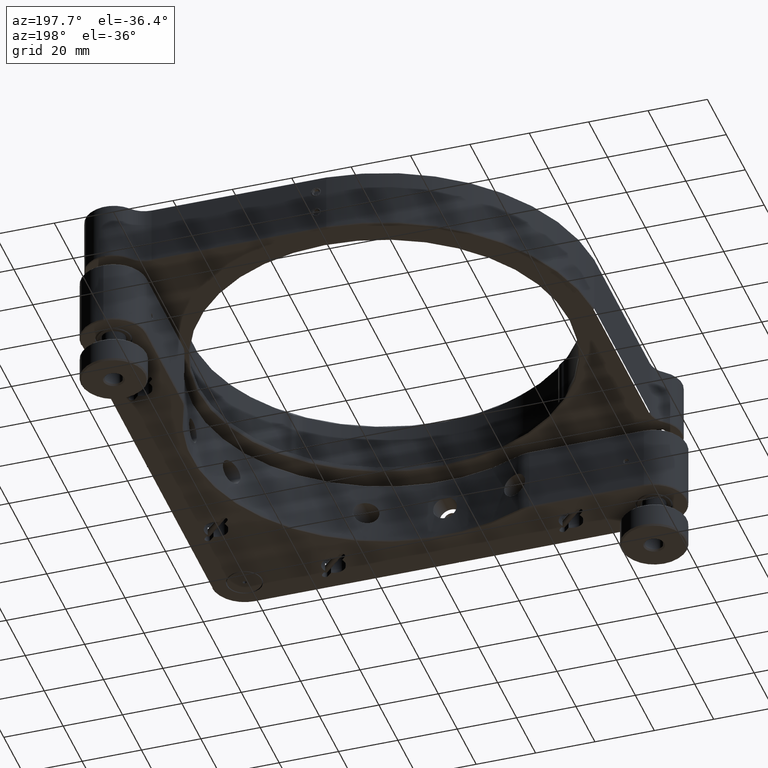
[diagram: clean part render]
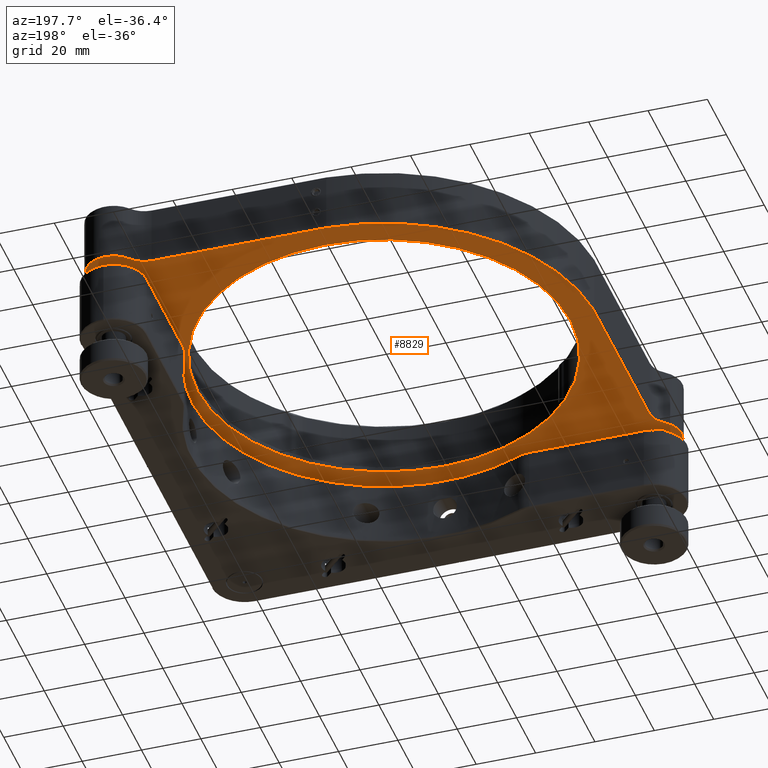
[diagram: same view with one face highlighted and labeled with its STEP entity id]
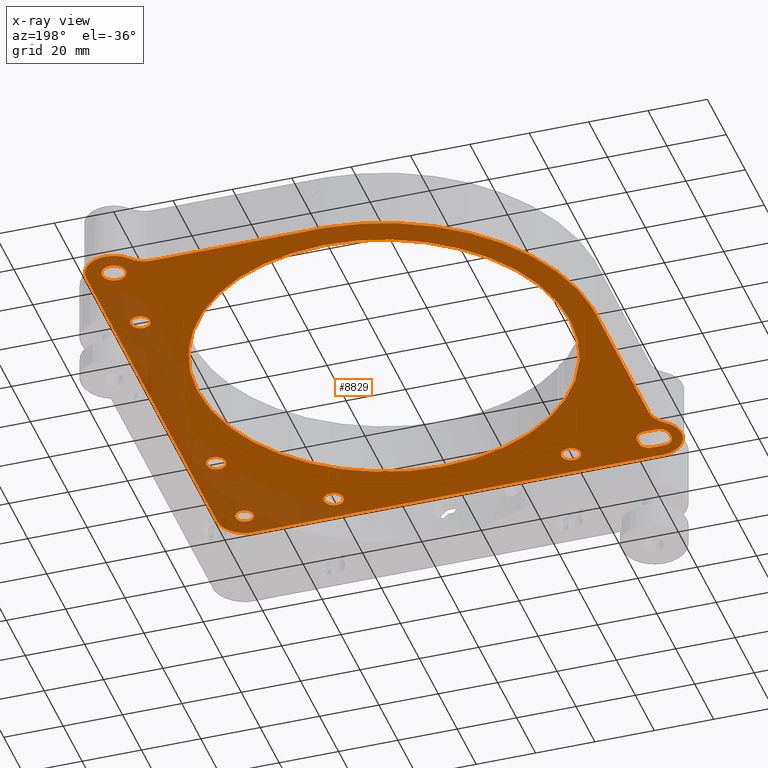
[diagram: x-ray of the same camera — body ghosted, the highlighted face saturated]
A machine part, auxiliary view. The second image highlights one B-rep face of the part: STEP entity #8829.
The next image is the same camera in x-ray: the body ghosted, the highlighted face saturated — about 24% of this face is hidden behind the body in this view.
In plain terms, the highlighted planar face has unit normal (0, 0, 1).
Its self-contained STEP definition (entity closure, byte-faithful):
#4 = VERTEX_POINT ( 'NONE', #3580 ) ;
#46 = EDGE_CURVE ( 'NONE', #11708, #6858, #659, .T. ) ;
#86 = DIRECTION ( 'NONE',  ( 1.460576560598794809E-21, -9.396343987072984124E-36, 1.000000000000000000 ) ) ;
#199 = FACE_BOUND ( 'NONE', #15394, .T. ) ;
#255 = ORIENTED_EDGE ( 'NONE', *, *, #2618, .T. ) ;
#275 = LINE ( 'NONE', #12277, #16104 ) ;
#289 = DIRECTION ( 'NONE',  ( -1.460576560598794809E-21, 9.396343987072984124E-36, -1.000000000000000000 ) ) ;
#320 = ORIENTED_EDGE ( 'NONE', *, *, #16398, .T. ) ;
#332 = CARTESIAN_POINT ( 'NONE',  ( 65.75000000000123634, 41.00000000000063949, 15.39949493661167246 ) ) ;
#380 = CIRCLE ( 'NONE', #8109, 9.250000000000223821 ) ;
#400 = AXIS2_PLACEMENT_3D ( 'NONE', #3988, #9445, #14900 ) ;
#447 = CARTESIAN_POINT ( 'NONE',  ( -67.00000000000133582, -73.45000000000142393, 15.39949493661167246 ) ) ;
#465 = FACE_BOUND ( 'NONE', #15289, .T. ) ;
#594 = EDGE_CURVE ( 'NONE', #2729, #2910, #11544, .T. ) ;
#659 = CIRCLE ( 'NONE', #14092, 3.000000000000071942 ) ;
#701 = CIRCLE ( 'NONE', #400, 3.250000000000072387 ) ;
#703 = DIRECTION ( 'NONE',  ( 0.000000000000000000, -1.000000000000000000, 0.000000000000000000 ) ) ;
#748 = EDGE_CURVE ( 'NONE', #2089, #7578, #5885, .T. ) ;
#813 = DIRECTION ( 'NONE',  ( -1.460576560598794809E-21, 9.396343987072984124E-36, -1.000000000000000000 ) ) ;
#889 = CARTESIAN_POINT ( 'NONE',  ( 69.00000000000129319, 69.00000000000133582, 15.39949493661167246 ) ) ;
#1053 = EDGE_CURVE ( 'NONE', #13142, #4, #380, .T. ) ;
#1078 = VERTEX_POINT ( 'NONE', #11657 ) ;
#1106 = DIRECTION ( 'NONE',  ( 1.460576560598794809E-21, -9.396343987072984124E-36, 1.000000000000000000 ) ) ;
#1171 = CARTESIAN_POINT ( 'NONE',  ( -3.642919299551294898E-14, -4.163336342344276442E-14, 15.39949493661167246 ) ) ;
#1185 = ORIENTED_EDGE ( 'NONE', *, *, #15339, .F. ) ;
#1230 = VERTEX_POINT ( 'NONE', #5043 ) ;
#1261 = CIRCLE ( 'NONE', #9260, 9.250000000000230926 ) ;
#1279 = CARTESIAN_POINT ( 'NONE',  ( 78.25000000000135003, -5.558054017028680189E-15, 15.39949493661167246 ) ) ;
#1300 = EDGE_LOOP ( 'NONE', ( #17297, #9742, #13541, #10475, #4988, #3475, #16133, #3579, #5295, #320, #14251 ) ) ;
#1322 = ORIENTED_EDGE ( 'NONE', *, *, #748, .F. ) ;
#1345 = EDGE_CURVE ( 'NONE', #8491, #5480, #275, .T. ) ;
#1361 = ORIENTED_EDGE ( 'NONE', *, *, #16684, .F. ) ;
#1517 = LINE ( 'NONE', #16547, #2370 ) ;
#1535 = AXIS2_PLACEMENT_3D ( 'NONE', #4309, #289, #9772 ) ;
#1537 = EDGE_LOOP ( 'NONE', ( #255, #3551 ) ) ;
#1621 = FACE_BOUND ( 'NONE', #14303, .T. ) ;
#1634 = VERTEX_POINT ( 'NONE', #12234 ) ;
#1664 = EDGE_CURVE ( 'NONE', #11262, #1748, #17682, .T. ) ;
#1678 = DIRECTION ( 'NONE',  ( -1.460576560598794809E-21, 9.396343987072984124E-36, -1.000000000000000000 ) ) ;
#1695 = DIRECTION ( 'NONE',  ( -1.460576560598794809E-21, 9.396343987072984124E-36, -1.000000000000000000 ) ) ;
#1702 = CARTESIAN_POINT ( 'NONE',  ( 69.00000000000127898, 65.00000000000125056, 15.39949493661167246 ) ) ;
#1711 = CARTESIAN_POINT ( 'NONE',  ( 69.00000000000129319, 78.25000000000136424, 15.39949493661167246 ) ) ;
#1748 = VERTEX_POINT ( 'NONE', #14097 ) ;
#1752 = CARTESIAN_POINT ( 'NONE',  ( 65.75000000000126477, -39.00000000000071054, 15.39949493661167246 ) ) ;
#1789 = DIRECTION ( 'NONE',  ( -4.191091917959963574E-15, 1.000000000000000000, 0.000000000000000000 ) ) ;
#1834 = CIRCLE ( 'NONE', #10114, 4.000000000000087041 ) ;
#1892 = DIRECTION ( 'NONE',  ( 1.460576560598794809E-21, 8.071795126406654290E-36, 1.000000000000000000 ) ) ;
#1927 = EDGE_CURVE ( 'NONE', #9002, #1230, #9220, .T. ) ;
#2008 = EDGE_CURVE ( 'NONE', #4, #9585, #6586, .T. ) ;
#2089 = VERTEX_POINT ( 'NONE', #14803 ) ;
#2154 = DIRECTION ( 'NONE',  ( 0.000000000000000000, -1.000000000000000000, 0.000000000000000000 ) ) ;
#2197 = VERTEX_POINT ( 'NONE', #14072 ) ;
#2238 = ORIENTED_EDGE ( 'NONE', *, *, #4624, .F. ) ;
#2270 = AXIS2_PLACEMENT_3D ( 'NONE', #4578, #1892, #4674 ) ;
#2321 = DIRECTION ( 'NONE',  ( -1.460576560598794809E-21, 9.396343987072984124E-36, -1.000000000000000000 ) ) ;
#2370 = VECTOR ( 'NONE', #11023, 1000.000000000000000 ) ;
#2416 = DIRECTION ( 'NONE',  ( 0.000000000000000000, -1.000000000000000000, 0.000000000000000000 ) ) ;
#2513 = DIRECTION ( 'NONE',  ( -1.460576560598794809E-21, 9.396343987072984124E-36, -1.000000000000000000 ) ) ;
#2550 = CIRCLE ( 'NONE', #7409, 3.250000000000072387 ) ;
#2562 = EDGE_CURVE ( 'NONE', #1748, #2089, #9957, .T. ) ;
#2618 = EDGE_CURVE ( 'NONE', #3280, #6709, #6264, .T. ) ;
#2622 = CARTESIAN_POINT ( 'NONE',  ( -79.91488024046338978, -55.32098726748413497, 15.39949493661167246 ) ) ;
#2630 = DIRECTION ( 'NONE',  ( 0.000000000000000000, 1.000000000000000000, 0.000000000000000000 ) ) ;
#2650 = AXIS2_PLACEMENT_3D ( 'NONE', #17664, #10714, #2630 ) ;
#2729 = VERTEX_POINT ( 'NONE', #1702 ) ;
#2731 = ORIENTED_EDGE ( 'NONE', *, *, #46, .F. ) ;
#2910 = VERTEX_POINT ( 'NONE', #7621 ) ;
#2924 = VECTOR ( 'NONE', #7850, 1000.000000000000000 ) ;
#2959 = AXIS2_PLACEMENT_3D ( 'NONE', #1171, #6641, #16202 ) ;
#2988 = ORIENTED_EDGE ( 'NONE', *, *, #12816, .F. ) ;
#3087 = EDGE_CURVE ( 'NONE', #7134, #3620, #2550, .T. ) ;
#3245 = CIRCLE ( 'NONE', #9249, 8.250000000000145661 ) ;
#3280 = VERTEX_POINT ( 'NONE', #16367 ) ;
#3299 = ORIENTED_EDGE ( 'NONE', *, *, #4966, .F. ) ;
#3475 = ORIENTED_EDGE ( 'NONE', *, *, #4212, .T. ) ;
#3548 = CIRCLE ( 'NONE', #14683, 3.500000000000072387 ) ;
#3551 = ORIENTED_EDGE ( 'NONE', *, *, #15348, .T. ) ;
#3560 = VERTEX_POINT ( 'NONE', #9374 ) ;
#3579 = ORIENTED_EDGE ( 'NONE', *, *, #2008, .T. ) ;
#3580 = CARTESIAN_POINT ( 'NONE',  ( 69.00000000000139266, -78.25000000000139266, 15.39949493661167246 ) ) ;
#3607 = CARTESIAN_POINT ( 'NONE',  ( -71.00000000000132161, -73.45000000000142393, 15.39949493661167246 ) ) ;
#3620 = VERTEX_POINT ( 'NONE', #3657 ) ;
#3657 = CARTESIAN_POINT ( 'NONE',  ( 72.25000000000140687, -39.00000000000071054, 15.39949493661167246 ) ) ;
#3685 = CARTESIAN_POINT ( 'NONE',  ( -8.421012831337362268E-14, 62.80000000000129745, 15.39949493661167246 ) ) ;
#3727 = ORIENTED_EDGE ( 'NONE', *, *, #13829, .T. ) ;
#3793 = CARTESIAN_POINT ( 'NONE',  ( -41.00000000000065370, -69.00000000000143530, 15.39949493661167246 ) ) ;
#3835 = ORIENTED_EDGE ( 'NONE', *, *, #11233, .F. ) ;
#3837 = AXIS2_PLACEMENT_3D ( 'NONE', #8650, #12948, #10076 ) ;
#3955 = DIRECTION ( 'NONE',  ( 0.000000000000000000, 1.000000000000000000, 0.000000000000000000 ) ) ;
#3988 = CARTESIAN_POINT ( 'NONE',  ( 69.00000000000133582, -39.00000000000071054, 15.39949493661167246 ) ) ;
#4098 = CARTESIAN_POINT ( 'NONE',  ( 69.00000000000136424, -66.00000000000129319, 15.39949493661167246 ) ) ;
#4137 = ORIENTED_EDGE ( 'NONE', *, *, #13454, .T. ) ;
#4212 = EDGE_CURVE ( 'NONE', #3560, #13142, #10947, .T. ) ;
#4280 = VERTEX_POINT ( 'NONE', #16829 ) ;
#4309 = CARTESIAN_POINT ( 'NONE',  ( 39.00000000000069633, -69.00000000000137845, 15.39949493661167246 ) ) ;
#4345 = CARTESIAN_POINT ( 'NONE',  ( 55.32098726748396444, 71.66488024046341820, 15.39949493661167246 ) ) ;
#4368 = DIRECTION ( 'NONE',  ( 0.000000000000000000, 1.000000000000000000, 0.000000000000000000 ) ) ;
#4490 = FACE_BOUND ( 'NONE', #16582, .T. ) ;
#4524 = DIRECTION ( 'NONE',  ( 6.383782391594628414E-16, -1.000000000000000000, 7.139394833494011697E-36 ) ) ;
#4574 = VECTOR ( 'NONE', #8996, 1000.000000000000000 ) ;
#4578 = CARTESIAN_POINT ( 'NONE',  ( -2.775557561562890089E-14, -5.551115123125781440E-14, 15.39949493661167246 ) ) ;
#4587 = AXIS2_PLACEMENT_3D ( 'NONE', #6104, #11557, #17007 ) ;
#4596 = CARTESIAN_POINT ( 'NONE',  ( -71.66488024046346084, 3.493914727097803485, 15.39949493661167246 ) ) ;
#4624 = EDGE_CURVE ( 'NONE', #1634, #6129, #10889, .T. ) ;
#4674 = DIRECTION ( 'NONE',  ( -6.383782391594628414E-16, 1.000000000000000000, -7.139394833494011697E-36 ) ) ;
#4752 = DIRECTION ( 'NONE',  ( -1.460576560598794809E-21, 9.396343987072984124E-36, -1.000000000000000000 ) ) ;
#4966 = EDGE_CURVE ( 'NONE', #2197, #11262, #9723, .T. ) ;
#4988 = ORIENTED_EDGE ( 'NONE', *, *, #6713, .T. ) ;
#5043 = CARTESIAN_POINT ( 'NONE',  ( -74.50000000000133582, -69.95000000000140972, 15.39949493661167246 ) ) ;
#5290 = VERTEX_POINT ( 'NONE', #10562 ) ;
#5295 = ORIENTED_EDGE ( 'NONE', *, *, #12725, .T. ) ;
#5379 = CARTESIAN_POINT ( 'NONE',  ( -67.00000000000133582, -69.95000000000140972, 15.39949493661167246 ) ) ;
#5480 = VERTEX_POINT ( 'NONE', #4345 ) ;
#5523 = DIRECTION ( 'NONE',  ( 1.000000000000000000, 6.383782391594628414E-16, -1.460576560598815498E-21 ) ) ;
#5575 = VERTEX_POINT ( 'NONE', #15804 ) ;
#5606 = AXIS2_PLACEMENT_3D ( 'NONE', #14043, #1695, #1789 ) ;
#5653 = DIRECTION ( 'NONE',  ( 1.000000000000000000, 6.383782391594628414E-16, -1.460576560598815498E-21 ) ) ;
#5731 = DIRECTION ( 'NONE',  ( -8.410780489584370766E-16, 1.000000000000000000, 0.000000000000000000 ) ) ;
#5810 = ORIENTED_EDGE ( 'NONE', *, *, #594, .F. ) ;
#5885 = LINE ( 'NONE', #16782, #13518 ) ;
#5963 = AXIS2_PLACEMENT_3D ( 'NONE', #6484, #11932, #3955 ) ;
#6104 = CARTESIAN_POINT ( 'NONE',  ( 39.00000000000069633, -69.00000000000137845, 15.39949493661167246 ) ) ;
#6129 = VERTEX_POINT ( 'NONE', #15150 ) ;
#6264 = CIRCLE ( 'NONE', #14247, 62.80000000000134008 ) ;
#6314 = EDGE_CURVE ( 'NONE', #14344, #16018, #9746, .T. ) ;
#6455 = CARTESIAN_POINT ( 'NONE',  ( -41.00000000000065370, -69.00000000000143530, 15.39949493661167246 ) ) ;
#6484 = CARTESIAN_POINT ( 'NONE',  ( -67.00000000000133582, -68.05000000000141824, 15.39949493661167246 ) ) ;
#6545 = CARTESIAN_POINT ( 'NONE',  ( 69.00000000000133582, -39.00000000000071054, 15.39949493661167246 ) ) ;
#6550 = DIRECTION ( 'NONE',  ( 0.000000000000000000, -1.000000000000000000, 0.000000000000000000 ) ) ;
#6586 = LINE ( 'NONE', #14985, #2924 ) ;
#6641 = DIRECTION ( 'NONE',  ( 1.460576560598794809E-21, -9.396343987072984124E-36, 1.000000000000000000 ) ) ;
#6654 = DIRECTION ( 'NONE',  ( 1.460576560598794809E-21, -9.396343987072984124E-36, 1.000000000000000000 ) ) ;
#6709 = VERTEX_POINT ( 'NONE', #3685 ) ;
#6713 = EDGE_CURVE ( 'NONE', #15030, #3560, #11483, .T. ) ;
#6739 = EDGE_CURVE ( 'NONE', #6858, #11708, #7482, .T. ) ;
#6772 = ORIENTED_EDGE ( 'NONE', *, *, #1664, .F. ) ;
#6802 = CARTESIAN_POINT ( 'NONE',  ( 69.00000000000130740, 41.00000000000063949, 15.39949493661167246 ) ) ;
#6858 = VERTEX_POINT ( 'NONE', #4098 ) ;
#6910 = AXIS2_PLACEMENT_3D ( 'NONE', #3793, #4752, #2154 ) ;
#6924 = DIRECTION ( 'NONE',  ( 0.000000000000000000, 1.000000000000000000, 0.000000000000000000 ) ) ;
#7099 = PLANE ( 'NONE',  #2270 ) ;
#7134 = VERTEX_POINT ( 'NONE', #1752 ) ;
#7188 = FACE_OUTER_BOUND ( 'NONE', #1300, .T. ) ;
#7264 = AXIS2_PLACEMENT_3D ( 'NONE', #2622, #1106, #6924 ) ;
#7293 = CARTESIAN_POINT ( 'NONE',  ( 78.25000000000139266, -69.00000000000135003, 15.39949493661167246 ) ) ;
#7409 = AXIS2_PLACEMENT_3D ( 'NONE', #6545, #9311, #16197 ) ;
#7449 = FACE_BOUND ( 'NONE', #1537, .T. ) ;
#7457 = CARTESIAN_POINT ( 'NONE',  ( 69.00000000000136424, -72.00000000000143530, 15.39949493661167246 ) ) ;
#7482 = CIRCLE ( 'NONE', #10057, 3.000000000000071942 ) ;
#7578 = VERTEX_POINT ( 'NONE', #16066 ) ;
#7621 = CARTESIAN_POINT ( 'NONE',  ( 69.00000000000127898, 73.00000000000142109, 15.39949493661167246 ) ) ;
#7685 = CARTESIAN_POINT ( 'NONE',  ( 69.00000000000136424, -69.00000000000136424, 15.39949493661167246 ) ) ;
#7747 = AXIS2_PLACEMENT_3D ( 'NONE', #12710, #1678, #4368 ) ;
#7774 = VERTEX_POINT ( 'NONE', #4596 ) ;
#7850 = DIRECTION ( 'NONE',  ( -1.000000000000000000, -6.383782391594628414E-16, 1.460576560598815498E-21 ) ) ;
#8104 = CIRCLE ( 'NONE', #10094, 3.250000000000072387 ) ;
#8109 = AXIS2_PLACEMENT_3D ( 'NONE', #12915, #10418, #11573 ) ;
#8238 = CARTESIAN_POINT ( 'NONE',  ( 55.32098726748396444, 79.91488024046338978, 15.39949493661167246 ) ) ;
#8281 = EDGE_LOOP ( 'NONE', ( #13079, #14964, #3835, #1185, #1322, #17384, #6772, #3299 ) ) ;
#8284 = CARTESIAN_POINT ( 'NONE',  ( -41.00000000000065370, -65.75000000000136424, 15.39949493661167246 ) ) ;
#8491 = VERTEX_POINT ( 'NONE', #10435 ) ;
#8650 = CARTESIAN_POINT ( 'NONE',  ( 69.00000000000127898, 69.00000000000133582, 15.39949493661167246 ) ) ;
#8706 = FACE_BOUND ( 'NONE', #8281, .T. ) ;
#8829 = ADVANCED_FACE ( 'NONE', ( #7188, #7449, #1621, #465, #8706, #199, #4490, #9949, #14157 ), #7099, .F. ) ;
#8996 = DIRECTION ( 'NONE',  ( 6.383782391594628414E-16, -1.000000000000000000, 7.139394833494011697E-36 ) ) ;
#9002 = VERTEX_POINT ( 'NONE', #3607 ) ;
#9047 = DIRECTION ( 'NONE',  ( 0.000000000000000000, 1.000000000000000000, 0.000000000000000000 ) ) ;
#9166 = CARTESIAN_POINT ( 'NONE',  ( -71.00000000000132161, -64.55000000000141824, 15.39949493661167246 ) ) ;
#9205 = CIRCLE ( 'NONE', #13489, 9.250000000000216716 ) ;
#9220 = CIRCLE ( 'NONE', #2650, 3.500000000000072387 ) ;
#9249 = AXIS2_PLACEMENT_3D ( 'NONE', #8238, #86, #5731 ) ;
#9260 = AXIS2_PLACEMENT_3D ( 'NONE', #14207, #11260, #11344 ) ;
#9301 = DIRECTION ( 'NONE',  ( 1.000000000000000000, 0.000000000000000000, 0.000000000000000000 ) ) ;
#9311 = DIRECTION ( 'NONE',  ( 1.460576560598794809E-21, -9.396343987072984124E-36, 1.000000000000000000 ) ) ;
#9351 = EDGE_CURVE ( 'NONE', #1078, #7774, #12071, .T. ) ;
#9374 = CARTESIAN_POINT ( 'NONE',  ( 78.25000000000130740, 69.00000000000136424, 15.39949493661167246 ) ) ;
#9445 = DIRECTION ( 'NONE',  ( 1.460576560598794809E-21, -9.396343987072984124E-36, 1.000000000000000000 ) ) ;
#9524 = AXIS2_PLACEMENT_3D ( 'NONE', #6455, #14670, #2416 ) ;
#9585 = VERTEX_POINT ( 'NONE', #17215 ) ;
#9654 = EDGE_LOOP ( 'NONE', ( #11391, #14509 ) ) ;
#9723 = CIRCLE ( 'NONE', #7747, 3.500000000000072387 ) ;
#9742 = ORIENTED_EDGE ( 'NONE', *, *, #1345, .T. ) ;
#9746 = CIRCLE ( 'NONE', #6910, 3.250000000000072387 ) ;
#9772 = DIRECTION ( 'NONE',  ( 0.000000000000000000, -1.000000000000000000, 0.000000000000000000 ) ) ;
#9825 = CIRCLE ( 'NONE', #16958, 3.250000000000072387 ) ;
#9949 = FACE_BOUND ( 'NONE', #9654, .T. ) ;
#9957 = CIRCLE ( 'NONE', #5963, 3.500000000000072387 ) ;
#10004 = ORIENTED_EDGE ( 'NONE', *, *, #3087, .T. ) ;
#10007 = DIRECTION ( 'NONE',  ( -1.460576560598794809E-21, 9.396343987072984124E-36, -1.000000000000000000 ) ) ;
#10057 = AXIS2_PLACEMENT_3D ( 'NONE', #11918, #16023, #6550 ) ;
#10076 = DIRECTION ( 'NONE',  ( 0.000000000000000000, -1.000000000000000000, 0.000000000000000000 ) ) ;
#10094 = AXIS2_PLACEMENT_3D ( 'NONE', #6802, #12249, #9301 ) ;
#10114 = AXIS2_PLACEMENT_3D ( 'NONE', #11792, #15726, #703 ) ;
#10418 = DIRECTION ( 'NONE',  ( -1.460576560598794809E-21, 9.396343987072984124E-36, -1.000000000000000000 ) ) ;
#10435 = CARTESIAN_POINT ( 'NONE',  ( -3.493914727097981121, 71.66488024046337557, 15.39949493661167246 ) ) ;
#10475 = ORIENTED_EDGE ( 'NONE', *, *, #17124, .T. ) ;
#10562 = CARTESIAN_POINT ( 'NONE',  ( 61.76966469852783348, 74.76929384138844625, 15.39949493661167246 ) ) ;
#10586 = EDGE_CURVE ( 'NONE', #7774, #8491, #14750, .T. ) ;
#10714 = DIRECTION ( 'NONE',  ( -1.460576560598794809E-21, 9.396343987072984124E-36, -1.000000000000000000 ) ) ;
#10825 = DIRECTION ( 'NONE',  ( 1.000000000000000000, 0.000000000000000000, 0.000000000000000000 ) ) ;
#10889 = CIRCLE ( 'NONE', #4587, 3.250000000000072387 ) ;
#10937 = VECTOR ( 'NONE', #11404, 1000.000000000000000 ) ;
#10947 = LINE ( 'NONE', #1279, #4574 ) ;
#11023 = DIRECTION ( 'NONE',  ( -6.383782391594628414E-16, 1.000000000000000000, -7.139394833494011697E-36 ) ) ;
#11233 = EDGE_CURVE ( 'NONE', #15480, #9002, #14091, .T. ) ;
#11253 = CIRCLE ( 'NONE', #1535, 3.250000000000072387 ) ;
#11260 = DIRECTION ( 'NONE',  ( -1.460576560598794809E-21, 9.396343987072984124E-36, -1.000000000000000000 ) ) ;
#11262 = VERTEX_POINT ( 'NONE', #9166 ) ;
#11344 = DIRECTION ( 'NONE',  ( 0.000000000000000000, 1.000000000000000000, 0.000000000000000000 ) ) ;
#11391 = ORIENTED_EDGE ( 'NONE', *, *, #13501, .F. ) ;
#11404 = DIRECTION ( 'NONE',  ( -1.000000000000000000, -6.383782391594628414E-16, 1.460576560598815498E-21 ) ) ;
#11474 = ORIENTED_EDGE ( 'NONE', *, *, #14370, .T. ) ;
#11483 = CIRCLE ( 'NONE', #15767, 9.250000000000216716 ) ;
#11544 = CIRCLE ( 'NONE', #3837, 4.000000000000087041 ) ;
#11557 = DIRECTION ( 'NONE',  ( -1.460576560598794809E-21, 9.396343987072984124E-36, -1.000000000000000000 ) ) ;
#11573 = DIRECTION ( 'NONE',  ( 0.000000000000000000, 1.000000000000000000, 0.000000000000000000 ) ) ;
#11657 = CARTESIAN_POINT ( 'NONE',  ( -71.66488024046341820, -55.32098726748413497, 15.39949493661167246 ) ) ;
#11708 = VERTEX_POINT ( 'NONE', #7457 ) ;
#11792 = CARTESIAN_POINT ( 'NONE',  ( 69.00000000000127898, 69.00000000000133582, 15.39949493661167246 ) ) ;
#11918 = CARTESIAN_POINT ( 'NONE',  ( 69.00000000000136424, -69.00000000000136424, 15.39949493661167246 ) ) ;
#11932 = DIRECTION ( 'NONE',  ( -1.460576560598794809E-21, 9.396343987072984124E-36, -1.000000000000000000 ) ) ;
#12071 = LINE ( 'NONE', #17526, #12852 ) ;
#12234 = CARTESIAN_POINT ( 'NONE',  ( 39.00000000000069633, -72.25000000000144951, 15.39949493661167246 ) ) ;
#12249 = DIRECTION ( 'NONE',  ( 1.460576560598794809E-21, -9.396343987072984124E-36, 1.000000000000000000 ) ) ;
#12277 = CARTESIAN_POINT ( 'NONE',  ( -7.350487567310970564E-14, 71.66488024046337557, 15.39949493661167246 ) ) ;
#12590 = EDGE_LOOP ( 'NONE', ( #2238, #1361 ) ) ;
#12710 = CARTESIAN_POINT ( 'NONE',  ( -71.00000000000132161, -68.05000000000141824, 15.39949493661167246 ) ) ;
#12725 = EDGE_CURVE ( 'NONE', #9585, #5575, #1261, .T. ) ;
#12765 = CARTESIAN_POINT ( 'NONE',  ( -71.00000000000132161, -73.45000000000142393, 15.39949493661167246 ) ) ;
#12816 = EDGE_CURVE ( 'NONE', #2910, #2729, #1834, .T. ) ;
#12852 = VECTOR ( 'NONE', #15923, 1000.000000000000000 ) ;
#12915 = CARTESIAN_POINT ( 'NONE',  ( 69.00000000000136424, -69.00000000000136424, 15.39949493661167246 ) ) ;
#12948 = DIRECTION ( 'NONE',  ( -1.460576560598794809E-21, 9.396343987072984124E-36, -1.000000000000000000 ) ) ;
#13079 = ORIENTED_EDGE ( 'NONE', *, *, #13268, .F. ) ;
#13142 = VERTEX_POINT ( 'NONE', #7293 ) ;
#13145 = DIRECTION ( 'NONE',  ( 0.000000000000000000, -1.000000000000000000, 0.000000000000000000 ) ) ;
#13268 = EDGE_CURVE ( 'NONE', #1230, #2197, #1517, .T. ) ;
#13360 = DIRECTION ( 'NONE',  ( -6.383782391594626442E-16, 1.000000000000000000, 0.000000000000000000 ) ) ;
#13408 = CARTESIAN_POINT ( 'NONE',  ( 69.00000000000130740, 41.00000000000063949, 15.39949493661167246 ) ) ;
#13454 = EDGE_CURVE ( 'NONE', #13560, #4280, #8104, .T. ) ;
#13477 = CARTESIAN_POINT ( 'NONE',  ( -41.00000000000065370, -72.25000000000150635, 15.39949493661167246 ) ) ;
#13489 = AXIS2_PLACEMENT_3D ( 'NONE', #889, #2321, #17079 ) ;
#13496 = DIRECTION ( 'NONE',  ( 1.460576560598794809E-21, -9.396343987072984124E-36, 1.000000000000000000 ) ) ;
#13501 = EDGE_CURVE ( 'NONE', #16018, #14344, #16373, .T. ) ;
#13518 = VECTOR ( 'NONE', #4524, 1000.000000000000000 ) ;
#13541 = ORIENTED_EDGE ( 'NONE', *, *, #15421, .T. ) ;
#13560 = VERTEX_POINT ( 'NONE', #332 ) ;
#13605 = DIRECTION ( 'NONE',  ( 0.000000000000000000, 1.000000000000000000, 0.000000000000000000 ) ) ;
#13829 = EDGE_CURVE ( 'NONE', #4280, #13560, #9825, .T. ) ;
#14043 = CARTESIAN_POINT ( 'NONE',  ( -2.775557561562890089E-14, -5.551115123125781440E-14, 15.39949493661167246 ) ) ;
#14072 = CARTESIAN_POINT ( 'NONE',  ( -74.50000000000133582, -68.05000000000141824, 15.39949493661167246 ) ) ;
#14092 = AXIS2_PLACEMENT_3D ( 'NONE', #7685, #10007, #13145 ) ;
#14091 = LINE ( 'NONE', #12765, #10937 ) ;
#14097 = CARTESIAN_POINT ( 'NONE',  ( -67.00000000000133582, -64.55000000000141824, 15.39949493661167246 ) ) ;
#14113 = CIRCLE ( 'NONE', #7264, 8.250000000000145661 ) ;
#14157 = FACE_BOUND ( 'NONE', #12590, .T. ) ;
#14207 = CARTESIAN_POINT ( 'NONE',  ( -69.00000000000133582, -69.00000000000144951, 15.39949493661167246 ) ) ;
#14247 = AXIS2_PLACEMENT_3D ( 'NONE', #14961, #6654, #13360 ) ;
#14251 = ORIENTED_EDGE ( 'NONE', *, *, #9351, .T. ) ;
#14303 = EDGE_LOOP ( 'NONE', ( #11474, #10004 ) ) ;
#14344 = VERTEX_POINT ( 'NONE', #8284 ) ;
#14370 = EDGE_CURVE ( 'NONE', #3620, #7134, #701, .T. ) ;
#14398 = VECTOR ( 'NONE', #5523, 1000.000000000000000 ) ;
#14509 = ORIENTED_EDGE ( 'NONE', *, *, #6314, .F. ) ;
#14670 = DIRECTION ( 'NONE',  ( -1.460576560598794809E-21, 9.396343987072984124E-36, -1.000000000000000000 ) ) ;
#14683 = AXIS2_PLACEMENT_3D ( 'NONE', #5379, #2513, #13605 ) ;
#14750 = CIRCLE ( 'NONE', #5606, 71.75000000000156319 ) ;
#14803 = CARTESIAN_POINT ( 'NONE',  ( -63.50000000000133582, -68.05000000000141824, 15.39949493661167246 ) ) ;
#14830 = ORIENTED_EDGE ( 'NONE', *, *, #6739, .F. ) ;
#14900 = DIRECTION ( 'NONE',  ( 1.000000000000000000, 0.000000000000000000, 0.000000000000000000 ) ) ;
#14961 = CARTESIAN_POINT ( 'NONE',  ( -3.642919299551294898E-14, -4.163336342344276442E-14, 15.39949493661167246 ) ) ;
#14964 = ORIENTED_EDGE ( 'NONE', *, *, #1927, .F. ) ;
#14985 = CARTESIAN_POINT ( 'NONE',  ( 2.219752159860034376E-14, -78.25000000000143530, 15.39949493661167246 ) ) ;
#15030 = VERTEX_POINT ( 'NONE', #1711 ) ;
#15150 = CARTESIAN_POINT ( 'NONE',  ( 39.00000000000069633, -65.75000000000130740, 15.39949493661167246 ) ) ;
#15289 = EDGE_LOOP ( 'NONE', ( #3727, #4137 ) ) ;
#15339 = EDGE_CURVE ( 'NONE', #7578, #15480, #3548, .T. ) ;
#15348 = EDGE_CURVE ( 'NONE', #6709, #3280, #17238, .T. ) ;
#15394 = EDGE_LOOP ( 'NONE', ( #5810, #2988 ) ) ;
#15421 = EDGE_CURVE ( 'NONE', #5480, #5290, #3245, .T. ) ;
#15480 = VERTEX_POINT ( 'NONE', #447 ) ;
#15726 = DIRECTION ( 'NONE',  ( -1.460576560598794809E-21, 9.396343987072984124E-36, -1.000000000000000000 ) ) ;
#15767 = AXIS2_PLACEMENT_3D ( 'NONE', #16113, #813, #9047 ) ;
#15804 = CARTESIAN_POINT ( 'NONE',  ( -74.76929384138844625, -61.76966469852798980, 15.39949493661167246 ) ) ;
#15923 = DIRECTION ( 'NONE',  ( -6.383782391594628414E-16, 1.000000000000000000, -7.139394833494011697E-36 ) ) ;
#15931 = CARTESIAN_POINT ( 'NONE',  ( -71.00000000000132161, -64.55000000000141824, 15.39949493661167246 ) ) ;
#16018 = VERTEX_POINT ( 'NONE', #13477 ) ;
#16023 = DIRECTION ( 'NONE',  ( -1.460576560598794809E-21, 9.396343987072984124E-36, -1.000000000000000000 ) ) ;
#16066 = CARTESIAN_POINT ( 'NONE',  ( -63.50000000000133582, -69.95000000000140972, 15.39949493661167246 ) ) ;
#16104 = VECTOR ( 'NONE', #5653, 1000.000000000000000 ) ;
#16113 = CARTESIAN_POINT ( 'NONE',  ( 69.00000000000129319, 69.00000000000133582, 15.39949493661167246 ) ) ;
#16133 = ORIENTED_EDGE ( 'NONE', *, *, #1053, .T. ) ;
#16197 = DIRECTION ( 'NONE',  ( 1.000000000000000000, 0.000000000000000000, 0.000000000000000000 ) ) ;
#16202 = DIRECTION ( 'NONE',  ( -6.383782391594626442E-16, 1.000000000000000000, 0.000000000000000000 ) ) ;
#16367 = CARTESIAN_POINT ( 'NONE',  ( 3.660960423702172502E-15, -62.80000000000138272, 15.39949493661167246 ) ) ;
#16373 = CIRCLE ( 'NONE', #9524, 3.250000000000072387 ) ;
#16398 = EDGE_CURVE ( 'NONE', #5575, #1078, #14113, .T. ) ;
#16547 = CARTESIAN_POINT ( 'NONE',  ( -74.50000000000133582, -68.05000000000141824, 15.39949493661167246 ) ) ;
#16582 = EDGE_LOOP ( 'NONE', ( #2731, #14830 ) ) ;
#16684 = EDGE_CURVE ( 'NONE', #6129, #1634, #11253, .T. ) ;
#16782 = CARTESIAN_POINT ( 'NONE',  ( -63.50000000000133582, -68.05000000000141824, 15.39949493661167246 ) ) ;
#16829 = CARTESIAN_POINT ( 'NONE',  ( 72.25000000000137845, 41.00000000000063949, 15.39949493661167246 ) ) ;
#16958 = AXIS2_PLACEMENT_3D ( 'NONE', #13408, #13496, #10825 ) ;
#17007 = DIRECTION ( 'NONE',  ( 0.000000000000000000, -1.000000000000000000, 0.000000000000000000 ) ) ;
#17079 = DIRECTION ( 'NONE',  ( -1.200241107702843741E-14, 1.000000000000000000, 0.000000000000000000 ) ) ;
#17124 = EDGE_CURVE ( 'NONE', #5290, #15030, #9205, .T. ) ;
#17215 = CARTESIAN_POINT ( 'NONE',  ( -69.00000000000132161, -78.25000000000147793, 15.39949493661167246 ) ) ;
#17238 = CIRCLE ( 'NONE', #2959, 62.80000000000134008 ) ;
#17297 = ORIENTED_EDGE ( 'NONE', *, *, #10586, .T. ) ;
#17384 = ORIENTED_EDGE ( 'NONE', *, *, #2562, .F. ) ;
#17526 = CARTESIAN_POINT ( 'NONE',  ( -71.66488024046346084, -1.012604512887389978E-13, 15.39949493661167246 ) ) ;
#17664 = CARTESIAN_POINT ( 'NONE',  ( -71.00000000000132161, -69.95000000000140972, 15.39949493661167246 ) ) ;
#17682 = LINE ( 'NONE', #15931, #14398 ) ;